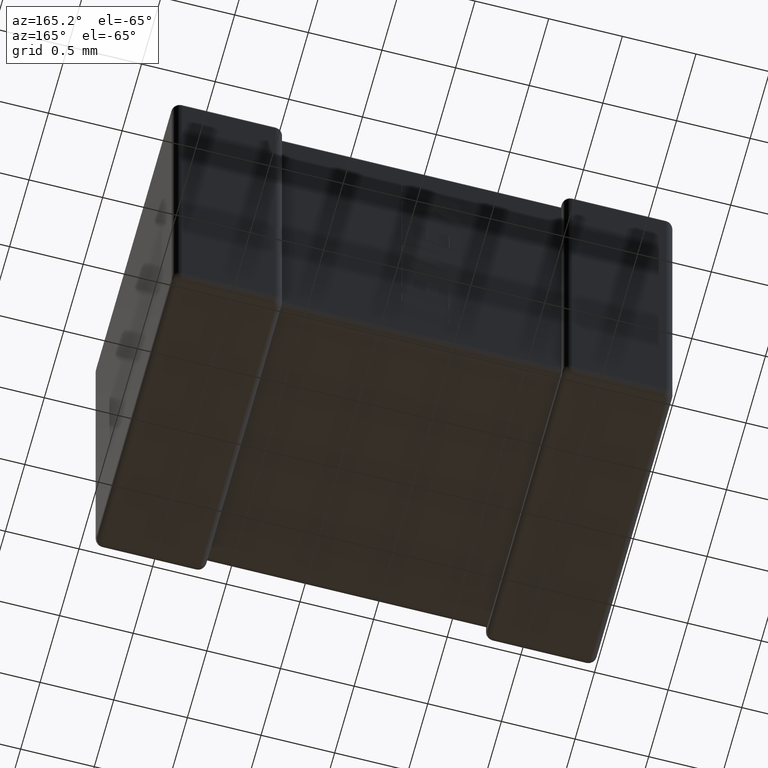
[diagram: clean part render]
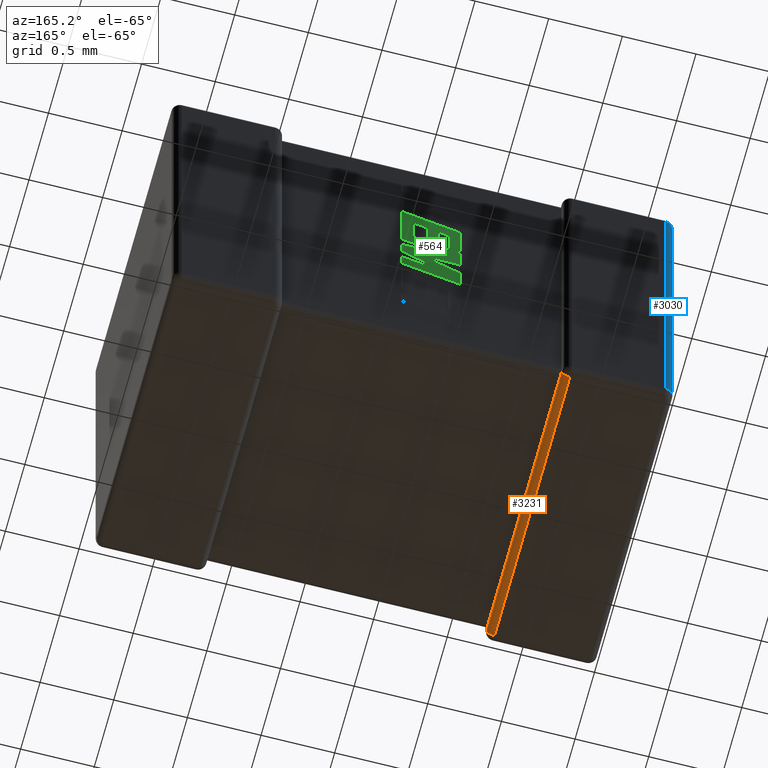
[diagram: same view with three faces highlighted in distinct colors, each labeled with its STEP entity id]
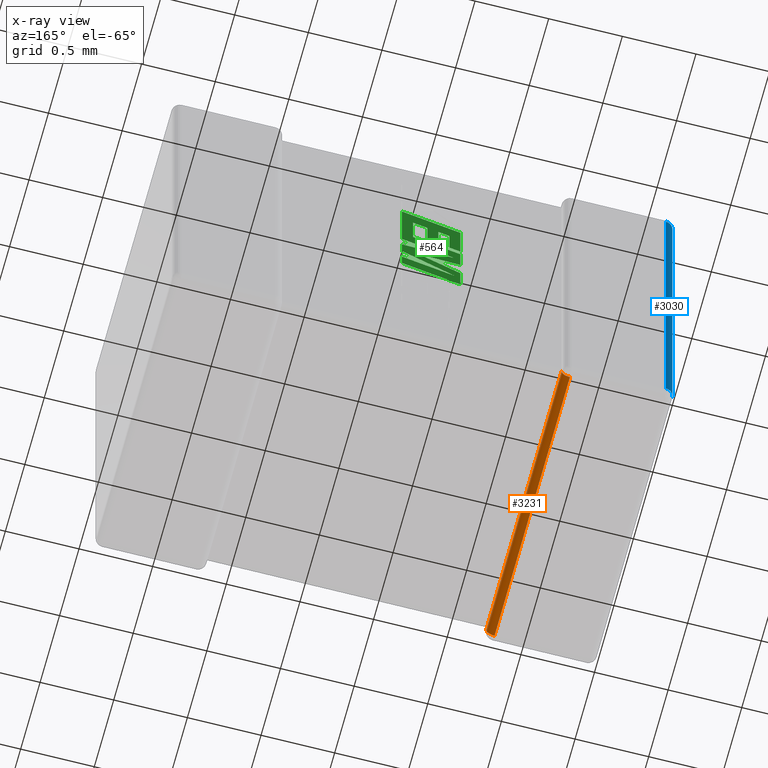
[diagram: x-ray of the same camera — body ghosted, the three highlighted faces saturated]
A machine part, auxiliary view with three faces highlighted in distinct colors.
The next image is the same camera in x-ray (body ghosted, the three faces saturated) — at least one of them is partly hidden behind the body in this view.
Their STEP definitions:

[orange] entity #3231 — the highlighted cylindrical surface (edge-blend (fillet) strip) has radius 0.0562 mm, axis along (0, -1, 0).
#131 = ORIENTED_EDGE ( 'NONE', *, *, #4128, .F. ) ;
#197 = EDGE_CURVE ( 'NONE', #3017, #3187, #3048, .T. ) ;
#271 = ORIENTED_EDGE ( 'NONE', *, *, #197, .F. ) ;
#335 = ORIENTED_EDGE ( 'NONE', *, *, #2741, .F. ) ;
#536 = LINE ( 'NONE', #3074, #2360 ) ;
#663 = CARTESIAN_POINT ( 'NONE',  ( 0.7499999999999997780, 0.1123199999999999754, -2.643839999999999968 ) ) ;
#800 = CARTESIAN_POINT ( 'NONE',  ( 0.6938400000000036760, -5.224402690693324092E-15, -2.643839999999999968 ) ) ;
#896 = DIRECTION ( 'NONE',  ( 1.930559423941426429E-15, -1.000000000000000000, 0.000000000000000000 ) ) ;
#952 = VERTEX_POINT ( 'NONE', #3784 ) ;
#991 = AXIS2_PLACEMENT_3D ( 'NONE', #1361, #2414, #2046 ) ;
#1322 = VECTOR ( 'NONE', #4401, 1000.000000000000000 ) ;
#1361 = CARTESIAN_POINT ( 'NONE',  ( 0.6938400000000035650, 0.05616000000000000159, -2.643839999999999968 ) ) ;
#1399 = ORIENTED_EDGE ( 'NONE', *, *, #4164, .T. ) ;
#1461 = EDGE_CURVE ( 'NONE', #952, #1708, #2976, .T. ) ;
#1708 = VERTEX_POINT ( 'NONE', #4609 ) ;
#1857 = CARTESIAN_POINT ( 'NONE',  ( 0.7499999999999997780, 0.000000000000000000, -2.643839999999999968 ) ) ;
#1873 = DIRECTION ( 'NONE',  ( 1.930559423941426429E-15, -1.000000000000000000, 0.000000000000000000 ) ) ;
#2046 = DIRECTION ( 'NONE',  ( 1.000000000000000000, 1.930559423941426035E-15, 0.000000000000000000 ) ) ;
#2088 = EDGE_CURVE ( 'NONE', #1708, #3315, #536, .T. ) ;
#2296 = CYLINDRICAL_SURFACE ( 'NONE', #3827, 0.05615999999999997383 ) ;
#2360 = VECTOR ( 'NONE', #896, 1000.000000000000000 ) ;
#2364 = CARTESIAN_POINT ( 'NONE',  ( 0.7499999999999997780, 1.937680000000000291, -2.643839999999999968 ) ) ;
#2414 = DIRECTION ( 'NONE',  ( 1.930559423941422485E-15, -1.000000000000000000, 0.000000000000000000 ) ) ;
#2437 = CARTESIAN_POINT ( 'NONE',  ( 0.7499999999999998890, 0.05615999999999997383, -2.643839999999999968 ) ) ;
#2440 = AXIS2_PLACEMENT_3D ( 'NONE', #3253, #2833, #2567 ) ;
#2567 = DIRECTION ( 'NONE',  ( 0.000000000000000000, 0.000000000000000000, 1.000000000000000000 ) ) ;
#2741 = EDGE_CURVE ( 'NONE', #4089, #3315, #3791, .T. ) ;
#2833 = DIRECTION ( 'NONE',  ( 0.000000000000000000, -1.000000000000000000, -0.000000000000000000 ) ) ;
#2935 = DIRECTION ( 'NONE',  ( 1.930559423941426429E-15, -1.000000000000000000, 0.000000000000000000 ) ) ;
#2945 = DIRECTION ( 'NONE',  ( -0.000000000000000000, 1.000000000000000000, -0.000000000000000000 ) ) ;
#2958 = CARTESIAN_POINT ( 'NONE',  ( 0.6938400000000036760, -5.224402690693324092E-15, -2.700000000000000178 ) ) ;
#2976 = CIRCLE ( 'NONE', #2440, 0.05615999999999997383 ) ;
#2989 = DIRECTION ( 'NONE',  ( 1.000000000000000000, 1.930559423941426035E-15, 0.000000000000000000 ) ) ;
#2990 = LINE ( 'NONE', #2958, #1322 ) ;
#3010 = FACE_OUTER_BOUND ( 'NONE', #4605, .T. ) ;
#3017 = VERTEX_POINT ( 'NONE', #4379 ) ;
#3048 = CIRCLE ( 'NONE', #991, 0.05615999999999997383 ) ;
#3074 = CARTESIAN_POINT ( 'NONE',  ( 0.7500000000000036637, -5.115982473444773648E-15, -2.643839999999999968 ) ) ;
#3187 = VERTEX_POINT ( 'NONE', #2437 ) ;
#3231 = ADVANCED_FACE ( 'NONE', ( #3010 ), #2296, .T. ) ;
#3253 = CARTESIAN_POINT ( 'NONE',  ( 0.6938399999999999013, 1.993840000000000279, -2.643839999999999968 ) ) ;
#3315 = VERTEX_POINT ( 'NONE', #2364 ) ;
#3436 = ORIENTED_EDGE ( 'NONE', *, *, #2088, .T. ) ;
#3726 = LINE ( 'NONE', #4374, #4430 ) ;
#3784 = CARTESIAN_POINT ( 'NONE',  ( 0.6938399999999997902, 1.993840000000000279, -2.700000000000000178 ) ) ;
#3791 = LINE ( 'NONE', #1857, #4187 ) ;
#3827 = AXIS2_PLACEMENT_3D ( 'NONE', #800, #2935, #2989 ) ;
#4089 = VERTEX_POINT ( 'NONE', #663 ) ;
#4128 = EDGE_CURVE ( 'NONE', #952, #3017, #2990, .T. ) ;
#4164 = EDGE_CURVE ( 'NONE', #4089, #3187, #3726, .T. ) ;
#4187 = VECTOR ( 'NONE', #2945, 1000.000000000000000 ) ;
#4374 = CARTESIAN_POINT ( 'NONE',  ( 0.7500000000000036637, -5.115982473444773648E-15, -2.643839999999999968 ) ) ;
#4379 = CARTESIAN_POINT ( 'NONE',  ( 0.6938400000000035650, 0.05616000000000000159, -2.700000000000000178 ) ) ;
#4401 = DIRECTION ( 'NONE',  ( 1.930559423941426429E-15, -1.000000000000000000, 0.000000000000000000 ) ) ;
#4430 = VECTOR ( 'NONE', #1873, 1000.000000000000000 ) ;
#4536 = ORIENTED_EDGE ( 'NONE', *, *, #1461, .T. ) ;
#4605 = EDGE_LOOP ( 'NONE', ( #4536, #3436, #335, #1399, #271, #131 ) ) ;
#4609 = CARTESIAN_POINT ( 'NONE',  ( 0.7499999999999998890, 1.993840000000000279, -2.643839999999999968 ) ) ;

[blue] entity #3030 — the highlighted cylindrical surface (edge-blend (fillet) strip) has radius 0.0562 mm, axis along (0, 0, -1).
#39 = EDGE_CURVE ( 'NONE', #1597, #2660, #129, .T. ) ;
#129 = CIRCLE ( 'NONE', #4354, 0.05616000000000000159 ) ;
#501 = EDGE_LOOP ( 'NONE', ( #1517, #545, #3196, #3532 ) ) ;
#545 = ORIENTED_EDGE ( 'NONE', *, *, #855, .F. ) ;
#755 = CARTESIAN_POINT ( 'NONE',  ( 0.05615999999999997383, 1.993840000000000279, 0.000000000000000000 ) ) ;
#855 = EDGE_CURVE ( 'NONE', #2660, #1594, #1406, .T. ) ;
#1039 = DIRECTION ( 'NONE',  ( 0.000000000000000000, 0.000000000000000000, -1.000000000000000000 ) ) ;
#1131 = FACE_OUTER_BOUND ( 'NONE', #501, .T. ) ;
#1213 = CARTESIAN_POINT ( 'NONE',  ( 0.000000000000000000, 1.993840000000000279, -2.643839999999999968 ) ) ;
#1240 = EDGE_CURVE ( 'NONE', #1943, #1597, #1886, .T. ) ;
#1406 = LINE ( 'NONE', #1760, #4175 ) ;
#1496 = DIRECTION ( 'NONE',  ( 0.000000000000000000, 0.000000000000000000, -1.000000000000000000 ) ) ;
#1515 = DIRECTION ( 'NONE',  ( -1.000000000000000000, 0.000000000000000000, 0.000000000000000000 ) ) ;
#1517 = ORIENTED_EDGE ( 'NONE', *, *, #1999, .F. ) ;
#1594 = VERTEX_POINT ( 'NONE', #1213 ) ;
#1597 = VERTEX_POINT ( 'NONE', #4073 ) ;
#1678 = AXIS2_PLACEMENT_3D ( 'NONE', #3222, #1039, #2098 ) ;
#1760 = CARTESIAN_POINT ( 'NONE',  ( 0.000000000000000000, 1.993840000000000279, -2.700000000000000178 ) ) ;
#1886 = LINE ( 'NONE', #3332, #3498 ) ;
#1900 = CARTESIAN_POINT ( 'NONE',  ( 0.000000000000000000, 1.993840000000000279, -0.05616000000000000159 ) ) ;
#1943 = VERTEX_POINT ( 'NONE', #4174 ) ;
#1999 = EDGE_CURVE ( 'NONE', #1594, #1943, #3736, .T. ) ;
#2098 = DIRECTION ( 'NONE',  ( -1.000000000000000000, 0.000000000000000000, 0.000000000000000000 ) ) ;
#2252 = CYLINDRICAL_SURFACE ( 'NONE', #2521, 0.05616000000000000159 ) ;
#2448 = DIRECTION ( 'NONE',  ( -0.000000000000000000, 0.000000000000000000, -1.000000000000000000 ) ) ;
#2521 = AXIS2_PLACEMENT_3D ( 'NONE', #755, #1496, #1515 ) ;
#2660 = VERTEX_POINT ( 'NONE', #1900 ) ;
#3026 = DIRECTION ( 'NONE',  ( 0.000000000000000000, 0.000000000000000000, 1.000000000000000000 ) ) ;
#3030 = ADVANCED_FACE ( 'NONE', ( #1131 ), #2252, .T. ) ;
#3196 = ORIENTED_EDGE ( 'NONE', *, *, #39, .F. ) ;
#3222 = CARTESIAN_POINT ( 'NONE',  ( 0.05616000000000000159, 1.993840000000000279, -2.643839999999999968 ) ) ;
#3297 = CARTESIAN_POINT ( 'NONE',  ( 0.05615999999999997383, 1.993840000000000279, -0.05616000000000000159 ) ) ;
#3332 = CARTESIAN_POINT ( 'NONE',  ( 0.05615999999999997383, 2.050000000000000266, 0.000000000000000000 ) ) ;
#3498 = VECTOR ( 'NONE', #3026, 1000.000000000000000 ) ;
#3532 = ORIENTED_EDGE ( 'NONE', *, *, #1240, .F. ) ;
#3736 = CIRCLE ( 'NONE', #1678, 0.05616000000000000159 ) ;
#3966 = DIRECTION ( 'NONE',  ( 0.000000000000000000, -0.000000000000000000, 1.000000000000000000 ) ) ;
#4073 = CARTESIAN_POINT ( 'NONE',  ( 0.05615999999999997383, 2.050000000000000266, -0.05616000000000000159 ) ) ;
#4174 = CARTESIAN_POINT ( 'NONE',  ( 0.05615999999999997383, 2.050000000000000266, -2.643839999999999968 ) ) ;
#4175 = VECTOR ( 'NONE', #2448, 1000.000000000000000 ) ;
#4354 = AXIS2_PLACEMENT_3D ( 'NONE', #3297, #3966, #4655 ) ;
#4655 = DIRECTION ( 'NONE',  ( 1.000000000000000000, 0.000000000000000000, 0.000000000000000000 ) ) ;

[green] entity #564 — the highlighted planar face has unit normal (0, -1, 0).
#4 = VECTOR ( 'NONE', #1272, 1000.000000000000000 ) ;
#56 = VERTEX_POINT ( 'NONE', #3268 ) ;
#80 = EDGE_CURVE ( 'NONE', #3476, #279, #4332, .T. ) ;
#104 = ORIENTED_EDGE ( 'NONE', *, *, #1576, .T. ) ;
#125 = VERTEX_POINT ( 'NONE', #2322 ) ;
#146 = CARTESIAN_POINT ( 'NONE',  ( 1.836000000000006738, 1.998839999999999950, -1.464279240854371889 ) ) ;
#156 = LINE ( 'NONE', #3043, #1233 ) ;
#179 = VECTOR ( 'NONE', #1720, 1000.000000000000114 ) ;
#214 = CARTESIAN_POINT ( 'NONE',  ( 1.661831346058584735, 1.998839999999999950, -1.096788329672133688 ) ) ;
#235 = VECTOR ( 'NONE', #4588, 1000.000000000000000 ) ;
#249 = VECTOR ( 'NONE', #3353, 1000.000000000000114 ) ;
#264 = ORIENTED_EDGE ( 'NONE', *, *, #1920, .T. ) ;
#279 = VERTEX_POINT ( 'NONE', #747 ) ;
#292 = ORIENTED_EDGE ( 'NONE', *, *, #1430, .T. ) ;
#302 = ORIENTED_EDGE ( 'NONE', *, *, #1929, .T. ) ;
#311 = CARTESIAN_POINT ( 'NONE',  ( 1.836000000000006738, 1.998839999999999950, -0.7637087314246739922 ) ) ;
#315 = ORIENTED_EDGE ( 'NONE', *, *, #1743, .T. ) ;
#330 = CARTESIAN_POINT ( 'NONE',  ( 1.836000000000006738, 1.998839999999999950, -1.378798892409895727 ) ) ;
#342 = VECTOR ( 'NONE', #3565, 1000.000000000000227 ) ;
#350 = FACE_OUTER_BOUND ( 'NONE', #824, .T. ) ;
#423 = DIRECTION ( 'NONE',  ( 0.000000000000000000, 0.000000000000000000, 1.000000000000000000 ) ) ;
#461 = VERTEX_POINT ( 'NONE', #1335 ) ;
#564 = ADVANCED_FACE ( 'NONE', ( #350 ), #3622, .F. ) ;
#637 = VERTEX_POINT ( 'NONE', #1169 ) ;
#717 = CARTESIAN_POINT ( 'NONE',  ( 1.836000000000006738, 1.998839999999999950, -0.7637087314246739922 ) ) ;
#735 = DIRECTION ( 'NONE',  ( -0.9985542843760948362, 0.000000000000000000, -0.05375259206908063886 ) ) ;
#747 = CARTESIAN_POINT ( 'NONE',  ( 1.836000000000006738, 1.998839999999999950, -1.272980965228251771 ) ) ;
#749 = VERTEX_POINT ( 'NONE', #4141 ) ;
#753 = CARTESIAN_POINT ( 'NONE',  ( 1.482623858147629869, 1.998839999999999950, -1.292788712082211244 ) ) ;
#754 = CARTESIAN_POINT ( 'NONE',  ( 1.661831346058584735, 1.998839999999999950, -1.096788329672133688 ) ) ;
#757 = CARTESIAN_POINT ( 'NONE',  ( 1.439070229052686667, 1.998839999999999950, -1.505174769309383320 ) ) ;
#796 = VECTOR ( 'NONE', #4667, 1000.000000000000114 ) ;
#797 = ORIENTED_EDGE ( 'NONE', *, *, #4469, .T. ) ;
#824 = EDGE_LOOP ( 'NONE', ( #2463, #2573, #3601, #3347, #2611, #104, #3371, #264, #4166, #302, #292, #2872, #2639, #797, #4062, #315, #4347, #904, #2130, #3552, #1492, #3674, #4435 ) ) ;
#848 = EDGE_CURVE ( 'NONE', #4523, #3878, #1514, .T. ) ;
#884 = CARTESIAN_POINT ( 'NONE',  ( 1.661831346058584735, 1.998839999999999950, -0.9264455688293166125 ) ) ;
#885 = EDGE_CURVE ( 'NONE', #4236, #1010, #2802, .T. ) ;
#904 = ORIENTED_EDGE ( 'NONE', *, *, #80, .T. ) ;
#924 = DIRECTION ( 'NONE',  ( 0.000000000000000000, 0.000000000000000000, -1.000000000000000000 ) ) ;
#984 = CARTESIAN_POINT ( 'NONE',  ( 1.836000000000006738, 1.998839999999999950, -1.191324096069252159 ) ) ;
#985 = EDGE_CURVE ( 'NONE', #4218, #4376, #1918, .T. ) ;
#1010 = VERTEX_POINT ( 'NONE', #1589 ) ;
#1020 = EDGE_CURVE ( 'NONE', #279, #56, #4500, .T. ) ;
#1040 = LINE ( 'NONE', #4675, #2982 ) ;
#1093 = DIRECTION ( 'NONE',  ( 0.000000000000000000, 0.000000000000000000, -1.000000000000000000 ) ) ;
#1117 = DIRECTION ( 'NONE',  ( -0.9619530280415478085, 0.000000000000000000, -0.2732148821746301914 ) ) ;
#1128 = VERTEX_POINT ( 'NONE', #2143 ) ;
#1169 = CARTESIAN_POINT ( 'NONE',  ( 1.480922120208878701, 1.998839999999999950, -1.566245929904677148 ) ) ;
#1205 = CARTESIAN_POINT ( 'NONE',  ( 1.836000000000006738, 1.998839999999999950, -1.191324096069252159 ) ) ;
#1233 = VECTOR ( 'NONE', #4486, 1000.000000000000114 ) ;
#1260 = DIRECTION ( 'NONE',  ( 0.000000000000000000, 0.000000000000000000, -1.000000000000000000 ) ) ;
#1261 = CARTESIAN_POINT ( 'NONE',  ( 1.480922120208878701, 1.998839999999999950, -1.566245929904677148 ) ) ;
#1265 = VERTEX_POINT ( 'NONE', #3798 ) ;
#1272 = DIRECTION ( 'NONE',  ( 0.000000000000000000, 0.000000000000000000, -1.000000000000000000 ) ) ;
#1301 = VERTEX_POINT ( 'NONE', #1973 ) ;
#1335 = CARTESIAN_POINT ( 'NONE',  ( 1.439070229052686667, 1.998839999999999950, -1.379797255758040908 ) ) ;
#1347 = LINE ( 'NONE', #1261, #3505 ) ;
#1383 = LINE ( 'NONE', #717, #3417 ) ;
#1428 = CARTESIAN_POINT ( 'NONE',  ( 1.439070229052686667, 1.998839999999999950, -0.8779291408648176587 ) ) ;
#1430 = EDGE_CURVE ( 'NONE', #3101, #749, #3821, .T. ) ;
#1492 = ORIENTED_EDGE ( 'NONE', *, *, #2777, .T. ) ;
#1514 = LINE ( 'NONE', #3561, #235 ) ;
#1576 = EDGE_CURVE ( 'NONE', #4223, #1301, #3382, .T. ) ;
#1589 = CARTESIAN_POINT ( 'NONE',  ( 1.588452647486523484, 1.998839999999999950, -1.117747465174933730 ) ) ;
#1595 = CARTESIAN_POINT ( 'NONE',  ( 1.836000000000006738, 1.998839999999999950, -1.565145231322540464 ) ) ;
#1639 = VECTOR ( 'NONE', #423, 1000.000000000000000 ) ;
#1720 = DIRECTION ( 'NONE',  ( -0.9601763114327565019, 0.000000000000000000, -0.2793947940878394043 ) ) ;
#1722 = CARTESIAN_POINT ( 'NONE',  ( 1.836000000000006738, 1.998839999999999950, -1.565145231322540464 ) ) ;
#1730 = VERTEX_POINT ( 'NONE', #4289 ) ;
#1743 = EDGE_CURVE ( 'NONE', #2959, #4066, #1383, .T. ) ;
#1777 = DIRECTION ( 'NONE',  ( 0.9984327301130250243, 0.000000000000000000, 0.05596501978067343341 ) ) ;
#1865 = EDGE_CURVE ( 'NONE', #4376, #4523, #2562, .T. ) ;
#1918 = LINE ( 'NONE', #2655, #4 ) ;
#1919 = LINE ( 'NONE', #4409, #3289 ) ;
#1920 = EDGE_CURVE ( 'NONE', #1730, #4236, #2257, .T. ) ;
#1929 = EDGE_CURVE ( 'NONE', #1010, #3101, #3040, .T. ) ;
#1973 = CARTESIAN_POINT ( 'NONE',  ( 1.760483870298813924, 1.998839999999999950, -0.8983367201675375169 ) ) ;
#1997 = CARTESIAN_POINT ( 'NONE',  ( 1.588452647486523484, 1.998839999999999950, -0.9473805662053309540 ) ) ;
#2040 = VECTOR ( 'NONE', #4068, 1000.000000000000114 ) ;
#2118 = VECTOR ( 'NONE', #924, 1000.000000000000000 ) ;
#2130 = ORIENTED_EDGE ( 'NONE', *, *, #1020, .T. ) ;
#2143 = CARTESIAN_POINT ( 'NONE',  ( 1.514623772849683636, 1.998839999999999950, -1.149708758874154357 ) ) ;
#2177 = LINE ( 'NONE', #3640, #4410 ) ;
#2179 = LINE ( 'NONE', #1428, #342 ) ;
#2216 = CARTESIAN_POINT ( 'NONE',  ( 1.439070229052686667, 1.998839999999999950, -1.379797255758040908 ) ) ;
#2231 = LINE ( 'NONE', #1205, #2531 ) ;
#2241 = DIRECTION ( 'NONE',  ( 0.000000000000000000, 0.000000000000000000, 1.000000000000000000 ) ) ;
#2257 = LINE ( 'NONE', #884, #3882 ) ;
#2258 = CARTESIAN_POINT ( 'NONE',  ( 1.760483870298813924, 1.998839999999999950, -0.8983367201675375169 ) ) ;
#2322 = CARTESIAN_POINT ( 'NONE',  ( 1.439070229052686667, 1.998839999999999950, -1.210758909182688026 ) ) ;
#2463 = ORIENTED_EDGE ( 'NONE', *, *, #848, .T. ) ;
#2476 = DIRECTION ( 'NONE',  ( 0.000000000000000000, -1.000000000000000000, 0.000000000000000000 ) ) ;
#2527 = DIRECTION ( 'NONE',  ( -0.8843386665637649191, 0.000000000000000000, -0.4668459304955137612 ) ) ;
#2531 = VECTOR ( 'NONE', #2658, 1000.000000000000114 ) ;
#2562 = LINE ( 'NONE', #1595, #2040 ) ;
#2573 = ORIENTED_EDGE ( 'NONE', *, *, #2739, .T. ) ;
#2601 = EDGE_CURVE ( 'NONE', #1128, #1265, #2177, .T. ) ;
#2611 = ORIENTED_EDGE ( 'NONE', *, *, #4297, .T. ) ;
#2639 = ORIENTED_EDGE ( 'NONE', *, *, #2601, .T. ) ;
#2655 = CARTESIAN_POINT ( 'NONE',  ( 1.836000000000006738, 1.998839999999999950, -1.464279240854371889 ) ) ;
#2658 = DIRECTION ( 'NONE',  ( -0.9611638845408968512, 0.000000000000000000, -0.2759782365590690567 ) ) ;
#2687 = EDGE_CURVE ( 'NONE', #1301, #1730, #3694, .T. ) ;
#2739 = EDGE_CURVE ( 'NONE', #3878, #3921, #156, .T. ) ;
#2757 = VERTEX_POINT ( 'NONE', #3306 ) ;
#2777 = EDGE_CURVE ( 'NONE', #637, #4218, #1347, .T. ) ;
#2802 = LINE ( 'NONE', #754, #4396 ) ;
#2827 = DIRECTION ( 'NONE',  ( -0.9615454294334448981, 0.000000000000000000, -0.2746459304917006627 ) ) ;
#2872 = ORIENTED_EDGE ( 'NONE', *, *, #3969, .T. ) ;
#2937 = EDGE_CURVE ( 'NONE', #3921, #461, #1040, .T. ) ;
#2959 = VERTEX_POINT ( 'NONE', #311 ) ;
#2960 = AXIS2_PLACEMENT_3D ( 'NONE', #4615, #2476, #4343 ) ;
#2982 = VECTOR ( 'NONE', #735, 1000.000000000000114 ) ;
#3016 = DIRECTION ( 'NONE',  ( 0.000000000000000000, 0.000000000000000000, -1.000000000000000000 ) ) ;
#3040 = LINE ( 'NONE', #3837, #4107 ) ;
#3043 = CARTESIAN_POINT ( 'NONE',  ( 1.439070229052686667, 1.998839999999999950, -1.505174769309383320 ) ) ;
#3101 = VERTEX_POINT ( 'NONE', #3126 ) ;
#3126 = CARTESIAN_POINT ( 'NONE',  ( 1.588452647486523484, 1.998839999999999950, -0.9473805662053309540 ) ) ;
#3186 = LINE ( 'NONE', #4276, #796 ) ;
#3236 = LINE ( 'NONE', #330, #3454 ) ;
#3268 = CARTESIAN_POINT ( 'NONE',  ( 1.836000000000006738, 1.998839999999999950, -1.378798892409895727 ) ) ;
#3284 = CARTESIAN_POINT ( 'NONE',  ( 1.439070229052686667, 1.998839999999999950, -1.679265467217702534 ) ) ;
#3289 = VECTOR ( 'NONE', #3016, 1000.000000000000000 ) ;
#3299 = VECTOR ( 'NONE', #2241, 1000.000000000000000 ) ;
#3306 = CARTESIAN_POINT ( 'NONE',  ( 1.439070229052686667, 1.998839999999999950, -0.8779291408648176587 ) ) ;
#3347 = ORIENTED_EDGE ( 'NONE', *, *, #4499, .T. ) ;
#3353 = DIRECTION ( 'NONE',  ( -0.9617234872620624708, 0.000000000000000000, -0.2740217765953968931 ) ) ;
#3368 = CARTESIAN_POINT ( 'NONE',  ( 1.836000000000006738, 1.998839999999999950, -1.272980965228251771 ) ) ;
#3371 = ORIENTED_EDGE ( 'NONE', *, *, #2687, .T. ) ;
#3382 = LINE ( 'NONE', #3697, #3660 ) ;
#3417 = VECTOR ( 'NONE', #1093, 1000.000000000000000 ) ;
#3454 = VECTOR ( 'NONE', #2527, 1000.000000000000227 ) ;
#3459 = VECTOR ( 'NONE', #1777, 1000.000000000000114 ) ;
#3476 = VERTEX_POINT ( 'NONE', #4020 ) ;
#3505 = VECTOR ( 'NONE', #3862, 1000.000000000000114 ) ;
#3519 = EDGE_CURVE ( 'NONE', #2757, #2959, #2179, .T. ) ;
#3552 = ORIENTED_EDGE ( 'NONE', *, *, #4299, .T. ) ;
#3561 = CARTESIAN_POINT ( 'NONE',  ( 1.439070229052686667, 1.998839999999999950, -1.679265467217702534 ) ) ;
#3565 = DIRECTION ( 'NONE',  ( 0.9610029908221285888, 0.000000000000000000, 0.2765379750249932211 ) ) ;
#3601 = ORIENTED_EDGE ( 'NONE', *, *, #2937, .T. ) ;
#3622 = PLANE ( 'NONE',  #2960 ) ;
#3640 = CARTESIAN_POINT ( 'NONE',  ( 1.514623772849683636, 1.998839999999999950, -1.149708758874154357 ) ) ;
#3651 = CARTESIAN_POINT ( 'NONE',  ( 1.760483870298813924, 1.998839999999999950, -1.118372642657951666 ) ) ;
#3660 = VECTOR ( 'NONE', #4419, 1000.000000000000000 ) ;
#3674 = ORIENTED_EDGE ( 'NONE', *, *, #985, .T. ) ;
#3694 = LINE ( 'NONE', #2258, #249 ) ;
#3697 = CARTESIAN_POINT ( 'NONE',  ( 1.760483870298813924, 1.998839999999999950, -1.118372642657951666 ) ) ;
#3798 = CARTESIAN_POINT ( 'NONE',  ( 1.439070229052686667, 1.998839999999999950, -1.171167553601791367 ) ) ;
#3821 = LINE ( 'NONE', #1997, #179 ) ;
#3837 = CARTESIAN_POINT ( 'NONE',  ( 1.588452647486523484, 1.998839999999999950, -1.117747465174933730 ) ) ;
#3862 = DIRECTION ( 'NONE',  ( 0.9611542233438712390, 0.000000000000000000, 0.2760118818968482768 ) ) ;
#3875 = DIRECTION ( 'NONE',  ( 0.000000000000000000, 0.000000000000000000, 1.000000000000000000 ) ) ;
#3878 = VERTEX_POINT ( 'NONE', #757 ) ;
#3882 = VECTOR ( 'NONE', #1260, 1000.000000000000000 ) ;
#3921 = VERTEX_POINT ( 'NONE', #4040 ) ;
#3969 = EDGE_CURVE ( 'NONE', #749, #1128, #1919, .T. ) ;
#3984 = EDGE_CURVE ( 'NONE', #4066, #3476, #2231, .T. ) ;
#4004 = CARTESIAN_POINT ( 'NONE',  ( 1.439070229052686667, 1.998839999999999950, -1.171167553601791367 ) ) ;
#4020 = CARTESIAN_POINT ( 'NONE',  ( 1.482623858147629869, 1.998839999999999950, -1.292788712082211244 ) ) ;
#4040 = CARTESIAN_POINT ( 'NONE',  ( 1.722641957339287710, 1.998839999999999950, -1.364532471788447276 ) ) ;
#4062 = ORIENTED_EDGE ( 'NONE', *, *, #3519, .T. ) ;
#4066 = VERTEX_POINT ( 'NONE', #984 ) ;
#4068 = DIRECTION ( 'NONE',  ( -0.9610674221107078363, 0.000000000000000000, -0.2763139702539095244 ) ) ;
#4107 = VECTOR ( 'NONE', #3875, 1000.000000000000000 ) ;
#4141 = CARTESIAN_POINT ( 'NONE',  ( 1.514623772849683636, 1.998839999999999950, -0.9688634990597322361 ) ) ;
#4166 = ORIENTED_EDGE ( 'NONE', *, *, #885, .T. ) ;
#4218 = VERTEX_POINT ( 'NONE', #146 ) ;
#4223 = VERTEX_POINT ( 'NONE', #3651 ) ;
#4236 = VERTEX_POINT ( 'NONE', #214 ) ;
#4276 = CARTESIAN_POINT ( 'NONE',  ( 1.439070229052686667, 1.998839999999999950, -1.210758909182688026 ) ) ;
#4289 = CARTESIAN_POINT ( 'NONE',  ( 1.661831346058584735, 1.998839999999999950, -0.9264455688293166125 ) ) ;
#4297 = EDGE_CURVE ( 'NONE', #125, #4223, #3186, .T. ) ;
#4299 = EDGE_CURVE ( 'NONE', #56, #637, #3236, .T. ) ;
#4332 = LINE ( 'NONE', #753, #3459 ) ;
#4343 = DIRECTION ( 'NONE',  ( 0.000000000000000000, 0.000000000000000000, -1.000000000000000000 ) ) ;
#4347 = ORIENTED_EDGE ( 'NONE', *, *, #3984, .T. ) ;
#4368 = LINE ( 'NONE', #4004, #1639 ) ;
#4376 = VERTEX_POINT ( 'NONE', #1722 ) ;
#4391 = LINE ( 'NONE', #2216, #3299 ) ;
#4396 = VECTOR ( 'NONE', #2827, 1000.000000000000227 ) ;
#4409 = CARTESIAN_POINT ( 'NONE',  ( 1.514623772849683636, 1.998839999999999950, -0.9688634990597322361 ) ) ;
#4410 = VECTOR ( 'NONE', #1117, 1000.000000000000114 ) ;
#4419 = DIRECTION ( 'NONE',  ( 0.000000000000000000, 0.000000000000000000, 1.000000000000000000 ) ) ;
#4435 = ORIENTED_EDGE ( 'NONE', *, *, #1865, .T. ) ;
#4469 = EDGE_CURVE ( 'NONE', #1265, #2757, #4368, .T. ) ;
#4486 = DIRECTION ( 'NONE',  ( 0.8958676361826827250, 0.000000000000000000, 0.4443210308329467728 ) ) ;
#4499 = EDGE_CURVE ( 'NONE', #461, #125, #4391, .T. ) ;
#4500 = LINE ( 'NONE', #3368, #2118 ) ;
#4523 = VERTEX_POINT ( 'NONE', #3284 ) ;
#4588 = DIRECTION ( 'NONE',  ( 0.000000000000000000, 0.000000000000000000, 1.000000000000000000 ) ) ;
#4615 = CARTESIAN_POINT ( 'NONE',  ( -0.8277549025643626823, 1.998839999999999950, 0.006109351898183301016 ) ) ;
#4667 = DIRECTION ( 'NONE',  ( 0.9610853065513847993, 0.000000000000000000, 0.2762517575166370531 ) ) ;
#4675 = CARTESIAN_POINT ( 'NONE',  ( 1.722641957339287710, 1.998839999999999950, -1.364532471788447276 ) ) ;